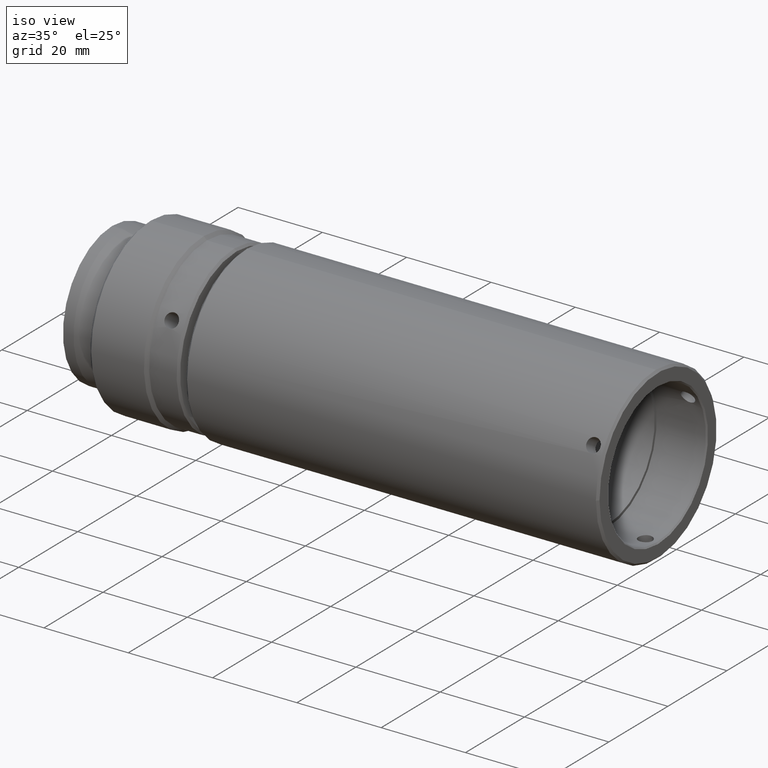
[diagram: clean part render]
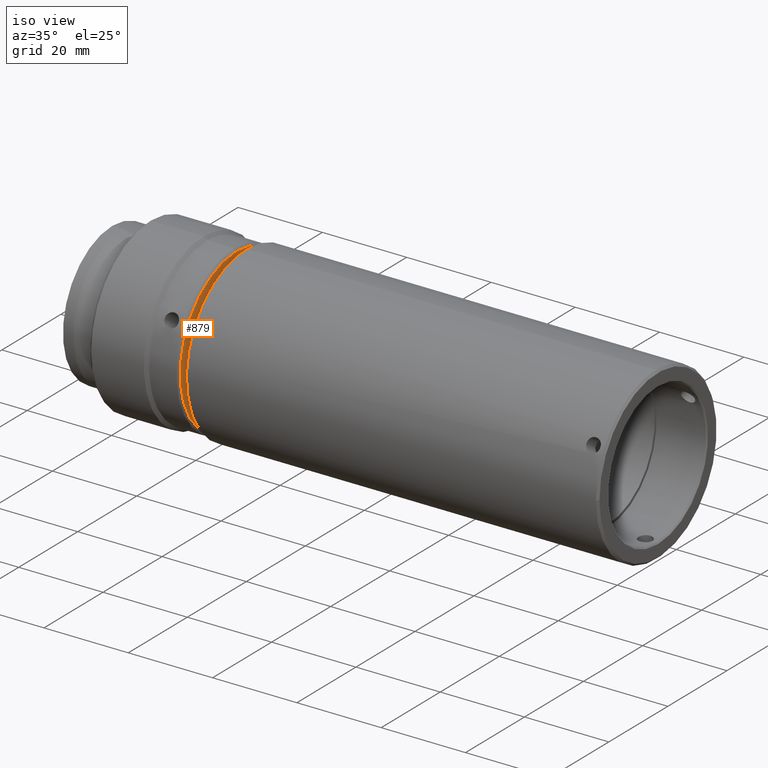
[diagram: same view with one face highlighted and labeled with its STEP entity id]
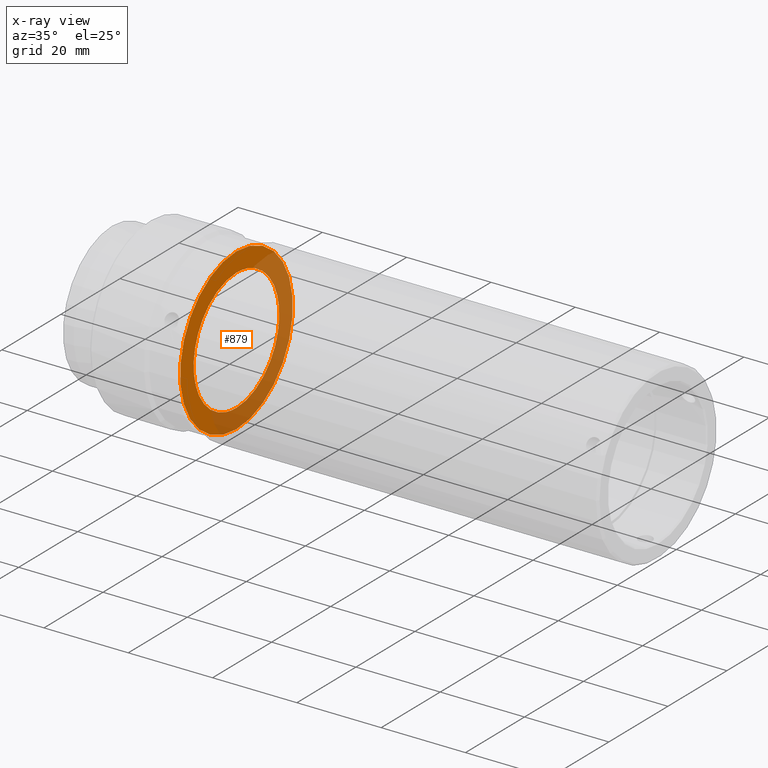
[diagram: x-ray of the same camera — body ghosted, the highlighted face saturated]
A machine part, iso view. The second image highlights one B-rep face of the part: STEP entity #879.
The next image is the same camera in x-ray: the body ghosted, the highlighted face saturated — about 48% of this face is hidden behind the body in this view.
In plain terms, the highlighted planar face has unit normal (-1, 0, 0).
Its self-contained STEP definition (entity closure, byte-faithful):
#19 = CARTESIAN_POINT ( 'NONE',  ( 22.43949542268091335, 50.30531704458957165, 92.49589676093887647 ) ) ;
#31 = CARTESIAN_POINT ( 'NONE',  ( 22.43949542268091690, 54.08979149574390277, 92.98455435096877864 ) ) ;
#44 = CARTESIAN_POINT ( 'NONE',  ( 22.43949542268091335, 50.30531704458957165, 121.4958967609388765 ) ) ;
#53 = CARTESIAN_POINT ( 'NONE',  ( 22.43949542268091335, 45.73902698465734318, 120.7617198613252327 ) ) ;
#64 = CARTESIAN_POINT ( 'NONE',  ( 22.43949542268090980, 44.99639947583963817, 120.4890902215009731 ) ) ;
#75 = CARTESIAN_POINT ( 'NONE',  ( 22.43949542268091335, 63.62450147455811589, 101.2621205272012048 ) ) ;
#76 = CARTESIAN_POINT ( 'NONE',  ( 22.43949542268091335, 36.83419894449922793, 112.3605754455987551 ) ) ;
#81 = DIRECTION ( 'NONE',  ( -1.000000000000000000, 0.000000000000000000, 0.000000000000000000 ) ) ;
#83 = CARTESIAN_POINT ( 'NONE',  ( 22.43949542268092046, 62.19755397945289133, 98.69813913867156430 ) ) ;
#92 = CARTESIAN_POINT ( 'NONE',  ( 22.43949542268092046, 64.62946097612575613, 109.2521610704573050 ) ) ;
#93 = CARTESIAN_POINT ( 'NONE',  ( 22.43949542268091335, 44.85419051183175299, 93.55952596466987359 ) ) ;
#104 = CARTESIAN_POINT ( 'NONE',  ( 22.43949542268090980, 60.91205097722224338, 97.09648178313861422 ) ) ;
#106 = CARTESIAN_POINT ( 'NONE',  ( 22.43949542268090980, 37.93894613476978606, 99.42293593007610752 ) ) ;
#119 = CARTESIAN_POINT ( 'NONE',  ( 22.43949542268092046, 63.96024365502523068, 102.0954098084588253 ) ) ;
#121 = CARTESIAN_POINT ( 'NONE',  ( 22.43949542268091690, 46.86269795073086897, 92.90699339268540768 ) ) ;
#134 = CARTESIAN_POINT ( 'NONE',  ( 22.43949542268091335, 62.57417613657592881, 114.7243464100760804 ) ) ;
#135 = CARTESIAN_POINT ( 'NONE',  ( 22.43949542268091335, 36.03737772726800159, 104.4119864923242744 ) ) ;
#145 = CARTESIAN_POINT ( 'NONE',  ( 22.43949542268091335, 53.34727312733770077, 121.1740880484522762 ) ) ;
#159 = CARTESIAN_POINT ( 'NONE',  ( 22.43949542268090980, 58.95911926255553226, 118.6352321278560709 ) ) ;
#185 = CARTESIAN_POINT ( 'NONE',  ( 22.43949542268091335, 52.07206856090182612, 121.4152060416190437 ) ) ;
#211 = CARTESIAN_POINT ( 'NONE',  ( 22.43949542268091690, 50.74851101943846032, 92.49588055110112350 ) ) ;
#213 = CARTESIAN_POINT ( 'NONE',  ( 22.43949542268090624, 36.08606356327023690, 109.8364605439915351 ) ) ;
#232 = CARTESIAN_POINT ( 'NONE',  ( 22.43949542268091335, 36.86894624831813161, 112.4470232936930216 ) ) ;
#240 = CARTESIAN_POINT ( 'NONE',  ( 22.43949542268091690, 46.52084259424816537, 121.0072391712201352 ) ) ;
#247 = CARTESIAN_POINT ( 'NONE',  ( 22.43949542268091690, 64.07114014478102604, 111.5621868213838042 ) ) ;
#248 = CARTESIAN_POINT ( 'NONE',  ( 22.43949542268091690, 49.86203544134217935, 121.4958967609388765 ) ) ;
#252 = ORIENTED_EDGE ( 'NONE', *, *, #1823, .F. ) ;
#257 = CARTESIAN_POINT ( 'NONE',  ( 22.43949542268091690, 64.80525308689634301, 106.1096793029854126 ) ) ;
#258 = CARTESIAN_POINT ( 'NONE',  ( 22.43949542268091335, 42.16245512130609541, 94.99807102233206990 ) ) ;
#266 = CARTESIAN_POINT ( 'NONE',  ( 22.43949542268091690, 35.88607182205242907, 108.7629943297977775 ) ) ;
#269 = DIRECTION ( 'NONE',  ( -1.000000000000000000, 0.000000000000000000, 0.000000000000000000 ) ) ;
#277 = CARTESIAN_POINT ( 'NONE',  ( 22.43949542268091690, 64.55245090912042372, 104.2996140076172651 ) ) ;
#278 = CARTESIAN_POINT ( 'NONE',  ( 22.43949542268091690, 49.41787825206804285, 92.49592921904904586 ) ) ;
#291 = CARTESIAN_POINT ( 'NONE',  ( 22.43949542268091335, 64.18699052337615285, 102.7604381891651855 ) ) ;
#292 = CARTESIAN_POINT ( 'NONE',  ( 22.43949542268091690, 35.80528506574887615, 106.5527880319420149 ) ) ;
#304 = CARTESIAN_POINT ( 'NONE',  ( 22.43949542268091335, 53.00159979572471514, 121.2430306263352264 ) ) ;
#305 = CARTESIAN_POINT ( 'NONE',  ( 22.43949542268091690, 36.13286677251252854, 103.8953487509780871 ) ) ;
#311 = VERTEX_POINT ( 'NONE', #923 ) ;
#316 = CARTESIAN_POINT ( 'NONE',  ( 22.43949542268092046, 56.43045357797331008, 120.1427717836920834 ) ) ;
#326 = EDGE_CURVE ( 'NONE', #311, #1766, #1082, .T. ) ;
#337 = CARTESIAN_POINT ( 'NONE',  ( 22.43949542268091335, 58.29108462655109690, 119.0988356772915751 ) ) ;
#349 = CARTESIAN_POINT ( 'NONE',  ( 22.43949542268090980, 53.74793611503653779, 121.0848001384540851 ) ) ;
#395 = CARTESIAN_POINT ( 'NONE',  ( 22.43949542268092046, 55.25849026684494447, 93.36722335004367324 ) ) ;
#408 = CARTESIAN_POINT ( 'NONE',  ( 22.43949542268091690, 43.84653758189828210, 119.9942735303628325 ) ) ;
#422 = CARTESIAN_POINT ( 'NONE',  ( 22.43949542268091690, 58.03376669375425223, 94.72703766896314903 ) ) ;
#423 = CARTESIAN_POINT ( 'NONE',  ( 22.43949542268091690, 36.42364356581900608, 111.2313553327256557 ) ) ;
#431 = CARTESIAN_POINT ( 'NONE',  ( 22.43949542268091335, 62.37291363398708199, 98.95681089426915378 ) ) ;
#432 = CARTESIAN_POINT ( 'NONE',  ( 22.43949542268090980, 35.98117311305691146, 104.7396324514121204 ) ) ;
#441 = CARTESIAN_POINT ( 'NONE',  ( 22.43949542268092046, 63.79851050515067357, 112.3048143296923769 ) ) ;
#442 = CARTESIAN_POINT ( 'NONE',  ( 22.43949542268090980, 47.46475326152665275, 92.77664327962249047 ) ) ;
#453 = CARTESIAN_POINT ( 'NONE',  ( 22.43949542268090980, 63.07888283723963951, 100.1031675639344769 ) ) ;
#454 = CARTESIAN_POINT ( 'NONE',  ( 22.43949542268090624, 36.67664363366954206, 102.0427235387376186 ) ) ;
#469 = CARTESIAN_POINT ( 'NONE',  ( 22.43949542268091690, 47.26336094818420008, 92.81770547882823053 ) ) ;
#476 = EDGE_LOOP ( 'NONE', ( #252 ) ) ;
#478 = CARTESIAN_POINT ( 'NONE',  ( 22.43949542268091335, 50.30531704458957165, 121.4958967609388765 ) ) ;
#491 = CARTESIAN_POINT ( 'NONE',  ( 22.43949542268091690, 53.05934251451630956, 121.2319808098125264 ) ) ;
#540 = CARTESIAN_POINT ( 'NONE',  ( 22.43949542268090980, 52.83467408587572578, 92.71818634256129599 ) ) ;
#555 = CARTESIAN_POINT ( 'NONE',  ( 22.43949542268091690, 47.20476903502395061, 121.1683470331622345 ) ) ;
#572 = CARTESIAN_POINT ( 'NONE',  ( 22.43949542268091690, 36.98613261459562551, 112.7296729946250906 ) ) ;
#581 = CARTESIAN_POINT ( 'NONE',  ( 22.43949542268091690, 48.04892037821423401, 121.3200162086713192 ) ) ;
#589 = CARTESIAN_POINT ( 'NONE',  ( 22.43949542268092046, 63.80881028697461943, 112.2785520192672237 ) ) ;
#590 = CARTESIAN_POINT ( 'NONE',  ( 22.43949542268091335, 37.90091416137726554, 114.5206289220085978 ) ) ;
#595 = PLANE ( 'NONE',  #1271 ) ;
#597 = CARTESIAN_POINT ( 'NONE',  ( 22.43949542268090980, 57.87827787542902769, 94.62952585110694770 ) ) ;
#610 = CARTESIAN_POINT ( 'NONE',  ( 22.43949542268091690, 64.59745699922717677, 109.4433530488118578 ) ) ;
#611 = CARTESIAN_POINT ( 'NONE',  ( 22.43949542268091335, 44.94063835993370759, 93.52477866084717562 ) ) ;
#624 = CARTESIAN_POINT ( 'NONE',  ( 22.43949542268092401, 36.05818318006111411, 109.6921795142685454 ) ) ;
#635 = CARTESIAN_POINT ( 'NONE',  ( 22.43949542268091335, 63.30369381399976447, 113.4546762236366533 ) ) ;
#636 = CARTESIAN_POINT ( 'NONE',  ( 22.43949542268091690, 45.40483009207036247, 93.34097015052120128 ) ) ;
#642 = VERTEX_POINT ( 'NONE', #2020 ) ;
#649 = CARTESIAN_POINT ( 'NONE',  ( 22.43949542268091690, 58.60307466676459143, 118.8881336958726536 ) ) ;
#650 = CARTESIAN_POINT ( 'NONE',  ( 22.43949542268091690, 38.71620180352888241, 98.22406011398224734 ) ) ;
#653 = CARTESIAN_POINT ( 'NONE',  ( 22.43949542268091335, 50.30531704458957165, 106.9958967609388765 ) ) ;
#673 = CARTESIAN_POINT ( 'NONE',  ( 22.43949542268090980, 62.50848013738115583, 114.8276551510173533 ) ) ;
#698 = CARTESIAN_POINT ( 'NONE',  ( 22.43949542268091690, 56.03909327826291076, 120.3150811909401199 ) ) ;
#711 = CARTESIAN_POINT ( 'NONE',  ( 22.43949542268090980, 52.75280829658390758, 92.70376327405806194 ) ) ;
#721 = CARTESIAN_POINT ( 'NONE',  ( 22.43949542268091690, 55.45092568695622504, 93.43939570325974842 ) ) ;
#735 = CARTESIAN_POINT ( 'NONE',  ( 22.43949542268091690, 44.51265223759137513, 120.2976176038358744 ) ) ;
#743 = CARTESIAN_POINT ( 'NONE',  ( 22.43949542268091335, 42.42310657194049384, 119.1665391530870153 ) ) ;
#761 = CARTESIAN_POINT ( 'NONE',  ( 22.43949542268091335, 63.74168784085483708, 101.5447702281731068 ) ) ;
#762 = CARTESIAN_POINT ( 'NONE',  ( 22.43949542268091690, 38.41308010965858699, 115.2936543831174561 ) ) ;
#770 = CARTESIAN_POINT ( 'NONE',  ( 22.43949542268091335, 61.94465241138532008, 98.34209454281356955 ) ) ;
#781 = CARTESIAN_POINT ( 'NONE',  ( 22.43949542268091335, 59.85099416094489300, 96.03558173493020433 ) ) ;
#782 = CARTESIAN_POINT ( 'NONE',  ( 22.43949542268090980, 36.53949394439517562, 102.4296067004870423 ) ) ;
#793 = CARTESIAN_POINT ( 'NONE',  ( 22.43949542268091335, 58.13707543468185435, 94.79273366815242241 ) ) ;
#806 = CARTESIAN_POINT ( 'NONE',  ( 22.43949542268091335, 64.39422041286564991, 103.5532776671303452 ) ) ;
#807 = CARTESIAN_POINT ( 'NONE',  ( 22.43949542268092046, 40.40590206681806507, 96.38916282827753435 ) ) ;
#818 = CARTESIAN_POINT ( 'NONE',  ( 22.43949542268091335, 53.14588082033561989, 121.2151502451496867 ) ) ;
#819 = CARTESIAN_POINT ( 'NONE',  ( 22.43949542268091335, 36.02760283795497998, 104.4665601986384615 ) ) ;
#830 = CARTESIAN_POINT ( 'NONE',  ( 22.43949542268090980, 52.97102232780457598, 121.2487814330218043 ) ) ;
#844 = CARTESIAN_POINT ( 'NONE',  ( 22.43949542268090269, 58.44817896782878819, 118.9937224995757674 ) ) ;
#867 = CARTESIAN_POINT ( 'NONE',  ( 22.43949542268091335, 60.20473202226789766, 117.6026306936644374 ) ) ;
#879 = ADVANCED_FACE ( 'NONE', ( #1138, #1812 ), #595, .F. ) ;
#893 = CARTESIAN_POINT ( 'NONE',  ( 22.43949542268090624, 52.91490107018731948, 92.73262657077390259 ) ) ;
#895 = CARTESIAN_POINT ( 'NONE',  ( 22.43949542268091690, 36.06923299740981292, 109.7499222351467125 ) ) ;
#905 = CARTESIAN_POINT ( 'NONE',  ( 22.43949542268091690, 42.73235621380160865, 119.3622676707965269 ) ) ;
#923 = CARTESIAN_POINT ( 'NONE',  ( 22.43949542268091335, 50.30531704458957165, 92.49589676093887647 ) ) ;
#931 = CARTESIAN_POINT ( 'NONE',  ( 22.43949542268090980, 63.60703788747813547, 112.7885615679423523 ) ) ;
#932 = CARTESIAN_POINT ( 'NONE',  ( 22.43949542268091335, 43.09884340513227130, 119.5825699793175119 ) ) ;
#942 = CARTESIAN_POINT ( 'NONE',  ( 22.43949542268092046, 64.56858723475181705, 109.6054807865464369 ) ) ;
#950 = CARTESIAN_POINT ( 'NONE',  ( 22.43949542268091690, 63.86181810228006128, 112.1415054032769518 ) ) ;
#951 = CARTESIAN_POINT ( 'NONE',  ( 22.43949542268091335, 39.34500201851408718, 97.45021964465041719 ) ) ;
#961 = CARTESIAN_POINT ( 'NONE',  ( 22.43949542268091335, 64.58303125122432675, 109.5252333232417215 ) ) ;
#962 = CARTESIAN_POINT ( 'NONE',  ( 22.43949542268091690, 37.71864382627617118, 99.78942312135262682 ) ) ;
#971 = DIRECTION ( 'NONE',  ( 0.000000000000000000, 0.000000000000000000, 1.000000000000000000 ) ) ;
#975 = CARTESIAN_POINT ( 'NONE',  ( 22.43949542268091690, 36.74881598689650986, 101.8502881186027196 ) ) ;
#988 = CARTESIAN_POINT ( 'NONE',  ( 22.43949542268090624, 44.76911195274883681, 93.59414392926423432 ) ) ;
#997 = CARTESIAN_POINT ( 'NONE',  ( 22.43949542268091335, 55.69963449071462236, 120.4551754239913208 ) ) ;
#1009 = CARTESIAN_POINT ( 'NONE',  ( 22.43949542268091335, 50.30531704458957165, 121.4958967609388765 ) ) ;
#1022 = CARTESIAN_POINT ( 'NONE',  ( 22.43949542268091335, 55.20580397927049887, 120.6508233784135200 ) ) ;
#1035 = CARTESIAN_POINT ( 'NONE',  ( 22.43949542268091335, 55.75644357733700218, 120.4322675572136916 ) ) ;
#1071 = CARTESIAN_POINT ( 'NONE',  ( 22.43949542268091690, 47.69573301896256368, 121.2591669510927375 ) ) ;
#1079 = CARTESIAN_POINT ( 'NONE',  ( 22.43949542268091335, 55.53318240398706962, 93.47109760647816756 ) ) ;
#1082 = B_SPLINE_CURVE_WITH_KNOTS ( 'NONE', 3,
 ( #19, #211, #1598, #1426, #1251, #711, #540, #1231, #893, #1587, #31, #1782, #395, #721, #1079, #1459, #1481, #1850, #1302, #1654, #597, #422, #793, #1283, #1315, #781, #104, #2024, #770, #83, #1098, #431, #2173, #1989, #453, #1329, #75, #1290, #761, #1141, #1838, #119, #291, #806, #1803, #1107, #1669, #277, #2162, #1813, #257, #2154, #2036, #1496, #92, #610, #961, #1825, #942, #1118, #1998, #247, #2197, #950, #2011, #589, #441, #931, #635, #1708, #2233, #134, #673, #1190, #1864, #1897, #867, #1368, #159, #649, #844, #1345, #337, #1167, #1561, #316, #698, #1733, #1035, #997, #2061, #1022, #1691, #349, #145, #818, #491, #304, #830, #185, #1177, #1009 ),
 .UNSPECIFIED., .F., .F.,
 ( 4, 1, 1, 1, 1, 2, 2, 1, 1, 1, 1, 2, 2, 1, 1, 1, 2, 2, 2, 1, 1, 1, 2, 2, 1, 1, 1, 1, 2, 2, 1, 1, 1, 1, 2, 2, 2, 1, 1, 1, 1, 2, 2, 1, 1, 1, 1, 2, 2, 1, 1, 1, 2, 2, 2, 1, 1, 1, 2, 2, 1, 1, 1, 1, 2, 2, 1, 1, 1, 1, 2, 2, 4 ),
 ( 0.000000000000000000, 0.03124999999998543526, 0.04687499999997844086, 0.05468749999997470773, 0.05859374999997251504, 0.06054687499997141870, 0.06249999999997032235, 0.09374999999995214939, 0.1093749999999430594, 0.1171874999999385075, 0.1210937499999364536, 0.1230468749999354822, 0.1249999999999344968, 0.1562499999999220623, 0.1718749999999158451, 0.1796874999999127365, 0.1835937499999111822, 0.1874999999999096556, 0.2499999999998888667, 0.2812499999998782085, 0.2968749999998731570, 0.3046874999998703260, 0.3085937499998689937, 0.3124999999998676614, 0.3437499999998604450, 0.3593749999998564482, 0.3671874999998542277, 0.3710937499998529510, 0.3730468749998528954, 0.3749999999998527844, 0.4062499999998520073, 0.4218749999998516187, 0.4296874999998518407, 0.4335937499998515632, 0.4355468749998508415, 0.4374999999998501754, 0.4999999999998383515, 0.5312499999998324673, 0.5468749999998289146, 0.5546874999998276934, 0.5585937499998275824, 0.5605468749998274713, 0.5624999999998273603, 0.5937499999998264721, 0.6093749999998265832, 0.6171874999998262501, 0.6210937499998264721, 0.6230468749998269162, 0.6249999999998274713, 0.6562499999998361311, 0.6718749999998407940, 0.6796874999998434586, 0.6835937499998449018, 0.6874999999998464562, 0.7499999999998758771, 0.7812499999998907541, 0.7968749999998979705, 0.8046874999999017453, 0.8085937499999037437, 0.8124999999999056310, 0.8437499999999179545, 0.8593749999999245048, 0.8671874999999280575, 0.8710937499999297229, 0.8730468749999303890, 0.8749999999999310552, 0.9062499999999444888, 0.9218749999999511502, 0.9296874999999548139, 0.9335937499999565903, 0.9355468749999578115, 0.9374999999999589217, 1.000000000000000000 ),
 .UNSPECIFIED. ) ;
#1083 = CARTESIAN_POINT ( 'NONE',  ( 22.43949542268091335, 45.02266178631262505, 120.4993900033435068 ) ) ;
#1092 = CARTESIAN_POINT ( 'NONE',  ( 22.43949542268091690, 48.43176181304730932, 121.3773822669377580 ) ) ;
#1098 = CARTESIAN_POINT ( 'NONE',  ( 22.43949542268091335, 62.30314278318447663, 98.85303483764464261 ) ) ;
#1099 = CARTESIAN_POINT ( 'NONE',  ( 22.43949542268092401, 42.47355865451516621, 119.1990598537345107 ) ) ;
#1107 = CARTESIAN_POINT ( 'NONE',  ( 22.43949542268091690, 64.52457052591363151, 104.1553329778951706 ) ) ;
#1108 = CARTESIAN_POINT ( 'NONE',  ( 22.43949542268091690, 36.12712576247305662, 110.0378528573230028 ) ) ;
#1118 = CARTESIAN_POINT ( 'NONE',  ( 22.43949542268090624, 64.47776731666439787, 110.0964447708966389 ) ) ;
#1119 = CARTESIAN_POINT ( 'NONE',  ( 22.43949542268091335, 35.83552010136326516, 105.8906484526952880 ) ) ;
#1129 = CARTESIAN_POINT ( 'NONE',  ( 22.43949542268091335, 47.55129157037683996, 92.75981271376062409 ) ) ;
#1138 = FACE_OUTER_BOUND ( 'NONE', #476, .T. ) ;
#1141 = CARTESIAN_POINT ( 'NONE',  ( 22.43949542268091335, 63.76459570763765328, 101.6015793148057611 ) ) ;
#1142 = CARTESIAN_POINT ( 'NONE',  ( 22.43949542268092046, 44.18018051115724631, 93.84902173821396332 ) ) ;
#1146 = CIRCLE ( 'NONE', #1441, 19.07000000000000384 ) ;
#1158 = CARTESIAN_POINT ( 'NONE',  ( 22.43949542268091690, 48.53839016540918294, 92.57661993836896386 ) ) ;
#1167 = CARTESIAN_POINT ( 'NONE',  ( 22.43949542268091335, 57.83004920564404472, 119.4002996441606399 ) ) ;
#1177 = CARTESIAN_POINT ( 'NONE',  ( 22.43949542268092046, 51.19258047424328595, 121.4958967609388765 ) ) ;
#1190 = CARTESIAN_POINT ( 'NONE',  ( 22.43949542268091335, 62.47595943673312036, 114.8781072335938660 ) ) ;
#1231 = CARTESIAN_POINT ( 'NONE',  ( 22.43949542268090980, 52.88923780244196848, 92.72795938394428106 ) ) ;
#1242 = CARTESIAN_POINT ( 'NONE',  ( 22.43949542268091335, 45.35214382269050049, 120.6245701719704897 ) ) ;
#1251 = CARTESIAN_POINT ( 'NONE',  ( 22.43949542268092046, 52.56164662047215330, 92.67176490254946941 ) ) ;
#1254 = CARTESIAN_POINT ( 'NONE',  ( 22.43949542268091690, 47.72138550433635373, 121.2638321433635440 ) ) ;
#1271 = AXIS2_PLACEMENT_3D ( 'NONE', #1289, #81, #971 ) ;
#1275 = CARTESIAN_POINT ( 'NONE',  ( 22.43949542268090624, 36.90356421291025413, 112.5321018527718309 ) ) ;
#1283 = CARTESIAN_POINT ( 'NONE',  ( 22.43949542268090624, 58.18752751724765915, 94.82525436879529934 ) ) ;
#1284 = CARTESIAN_POINT ( 'NONE',  ( 22.43949542268091335, 36.65039043416429365, 111.8963837134291879 ) ) ;
#1289 = CARTESIAN_POINT ( 'NONE',  ( 22.43949542268091335, 50.30531704458957165, 92.49589676093887647 ) ) ;
#1290 = CARTESIAN_POINT ( 'NONE',  ( 22.43949542268091335, 63.70706987625649020, 101.4596916690813941 ) ) ;
#1292 = CARTESIAN_POINT ( 'NONE',  ( 22.43949542268091335, 36.80182380220211513, 101.7132415026152330 ) ) ;
#1302 = CARTESIAN_POINT ( 'NONE',  ( 22.43949542268091335, 56.76409650739529411, 93.99751999157136595 ) ) ;
#1304 = CARTESIAN_POINT ( 'NONE',  ( 22.43949542268091335, 36.29397463456464124, 103.2114223099039094 ) ) ;
#1315 = CARTESIAN_POINT ( 'NONE',  ( 22.43949542268091690, 59.07715369152292340, 95.40678151985453326 ) ) ;
#1316 = CARTESIAN_POINT ( 'NONE',  ( 22.43949542268091335, 42.00755942234284390, 95.10365982605399893 ) ) ;
#1329 = CARTESIAN_POINT ( 'NONE',  ( 22.43949542268091335, 63.45219206728590677, 100.8707602274428581 ) ) ;
#1330 = CARTESIAN_POINT ( 'NONE',  ( 22.43949542268091690, 42.78058488349713429, 94.59149387773945250 ) ) ;
#1345 = CARTESIAN_POINT ( 'NONE',  ( 22.43949542268091335, 58.34440291123107158, 119.0634933503580299 ) ) ;
#1346 = CARTESIAN_POINT ( 'NONE',  ( 22.43949542268090980, 36.04204685442606149, 104.3863127353393025 ) ) ;
#1368 = CARTESIAN_POINT ( 'NONE',  ( 22.43949542268091335, 59.64969364723435774, 118.1033182209864947 ) ) ;
#1418 = CARTESIAN_POINT ( 'NONE',  ( 22.43949542268092046, 49.19976620640962750, 121.4656377411939445 ) ) ;
#1426 = CARTESIAN_POINT ( 'NONE',  ( 22.43949542268091690, 52.17875726385872071, 92.61438997952791397 ) ) ;
#1428 = CARTESIAN_POINT ( 'NONE',  ( 22.43949542268091335, 41.53348039755086063, 118.5850120019757128 ) ) ;
#1436 = CARTESIAN_POINT ( 'NONE',  ( 22.43949542268092401, 38.20237812823814494, 114.9816643429022776 ) ) ;
#1441 = AXIS2_PLACEMENT_3D ( 'NONE', #653, #269, #1842 ) ;
#1446 = CARTESIAN_POINT ( 'NONE',  ( 22.43949542268091690, 47.85778985125973151, 121.2880235992534352 ) ) ;
#1459 = CARTESIAN_POINT ( 'NONE',  ( 22.43949542268091690, 55.58797230292455538, 93.49240351855650033 ) ) ;
#1460 = CARTESIAN_POINT ( 'NONE',  ( 22.43949542268091690, 36.05243037069033818, 109.6615912300154747 ) ) ;
#1469 = CARTESIAN_POINT ( 'NONE',  ( 22.43949542268090980, 36.81212358402341067, 101.6869791921974411 ) ) ;
#1481 = CARTESIAN_POINT ( 'NONE',  ( 22.43949542268091690, 55.61423461333635743, 93.50270330037517397 ) ) ;
#1483 = CARTESIAN_POINT ( 'NONE',  ( 22.43949542268091690, 46.06985847275073809, 93.11422328218232281 ) ) ;
#1495 = EDGE_CURVE ( 'NONE', #1766, #311, #1762, .T. ) ;
#1496 = CARTESIAN_POINT ( 'NONE',  ( 22.43949542268091690, 64.68684452282417396, 108.8692250950088294 ) ) ;
#1497 = CARTESIAN_POINT ( 'NONE',  ( 22.43949542268091690, 42.26623117792355089, 94.92830017153636391 ) ) ;
#1511 = CARTESIAN_POINT ( 'NONE',  ( 22.43949542268091690, 38.10215395180550502, 99.16413837084147076 ) ) ;
#1561 = CARTESIAN_POINT ( 'NONE',  ( 22.43949542268092046, 57.19804624144308747, 119.7694625536651643 ) ) ;
#1587 = CARTESIAN_POINT ( 'NONE',  ( 22.43949542268091335, 53.40586505461955369, 92.82344648889332461 ) ) ;
#1590 = CARTESIAN_POINT ( 'NONE',  ( 22.43949542268090980, 40.75963992842214623, 117.9562117871933680 ) ) ;
#1598 = CARTESIAN_POINT ( 'NONE',  ( 22.43949542268091335, 51.41071453307212380, 92.52612741346774783 ) ) ;
#1619 = CARTESIAN_POINT ( 'NONE',  ( 22.43949542268091335, 47.77593895194965512, 121.2736032851562271 ) ) ;
#1635 = CARTESIAN_POINT ( 'NONE',  ( 22.43949542268091335, 37.00359620174193509, 101.2032319538434137 ) ) ;
#1643 = CARTESIAN_POINT ( 'NONE',  ( 22.43949542268091690, 36.78051789012017991, 101.7680314015605205 ) ) ;
#1654 = CARTESIAN_POINT ( 'NONE',  ( 22.43949542268090980, 57.51179068413344453, 94.40922354260312943 ) ) ;
#1665 = EDGE_LOOP ( 'NONE', ( #2170, #2058 ) ) ;
#1669 = CARTESIAN_POINT ( 'NONE',  ( 22.43949542268090624, 64.54140109177265572, 104.2418712867394532 ) ) ;
#1670 = CARTESIAN_POINT ( 'NONE',  ( 22.43949542268091335, 40.96094044178411764, 95.88847530100105132 ) ) ;
#1683 = CARTESIAN_POINT ( 'NONE',  ( 22.43949542268091690, 38.13467465244229260, 99.11368628828573435 ) ) ;
#1691 = CARTESIAN_POINT ( 'NONE',  ( 22.43949542268091690, 54.54077558521292701, 120.8775702520445208 ) ) ;
#1708 = CARTESIAN_POINT ( 'NONE',  ( 22.43949542268091335, 62.89199026295710837, 114.2023704004019322 ) ) ;
#1733 = CARTESIAN_POINT ( 'NONE',  ( 22.43949542268091690, 55.84152213641387874, 120.3976495926227983 ) ) ;
#1762 = B_SPLINE_CURVE_WITH_KNOTS ( 'NONE', 3,
 ( #44, #248, #1418, #1092, #581, #1446, #1619, #1254, #1071, #555, #240, #53, #1242, #1954, #2155, #1083, #64, #735, #408, #932, #905, #1773, #1099, #743, #1428, #1590, #1786, #2147, #1982, #762, #1965, #1975, #1436, #590, #2138, #2128, #572, #1275, #232, #1796, #76, #1284, #423, #1990, #1108, #213, #895, #624, #1460, #266, #2000, #292, #1119, #2213, #432, #2052, #819, #135, #1346, #305, #1304, #782, #454, #975, #1643, #1292, #1469, #1635, #1826, #962, #106, #2186, #1511, #1683, #650, #951, #807, #1670, #1851, #1316, #258, #1497, #2026, #1330, #2012, #1142, #2175, #988, #93, #2198, #611, #636, #1483, #121, #469, #442, #1129, #1839, #2038, #1158, #278, #1865 ),
 .UNSPECIFIED., .F., .F.,
 ( 4, 1, 1, 1, 1, 2, 2, 1, 1, 1, 1, 2, 2, 1, 1, 1, 2, 2, 2, 1, 1, 1, 2, 2, 1, 1, 1, 1, 2, 2, 1, 1, 1, 1, 2, 2, 2, 1, 1, 1, 1, 2, 2, 1, 1, 1, 1, 2, 2, 1, 1, 1, 2, 2, 2, 1, 1, 1, 2, 2, 1, 1, 1, 1, 2, 2, 1, 1, 1, 1, 2, 2, 4 ),
 ( 0.000000000000000000, 0.03125000000001298267, 0.04687500000001976891, 0.05468750000002339795, 0.05859375000002529227, 0.06054687500002600004, 0.06250000000002670086, 0.09375000000003140543, 0.1093750000000336398, 0.1171875000000349026, 0.1210937500000357492, 0.1230468750000363459, 0.1250000000000369149, 0.1562500000000535127, 0.1718750000000620060, 0.1796875000000662526, 0.1835937500000683620, 0.1875000000000704714, 0.2500000000001057487, 0.2812500000001232348, 0.2968750000001321165, 0.3046875000001367240, 0.3085937500001387224, 0.3125000000001406653, 0.3437500000001557088, 0.3593750000001630918, 0.3671875000001666445, 0.3710937500001683653, 0.3730468750001687539, 0.3750000000001691425, 0.4062500000001684208, 0.4218750000001680878, 0.4296875000001683653, 0.4335937500001680878, 0.4355468750001684763, 0.4375000000001688094, 0.5000000000001755263, 0.5312500000001784128, 0.5468750000001803002, 0.5546875000001818545, 0.5585937500001825207, 0.5605468750001824096, 0.5625000000001821876, 0.5937500000001735279, 0.6093750000001696421, 0.6171875000001677547, 0.6210937500001663114, 0.6230468750001656453, 0.6250000000001650902, 0.6562500000001554312, 0.6718750000001501022, 0.6796875000001474376, 0.6835937500001464384, 0.6875000000001454392, 0.7500000000001253442, 0.7812500000001152411, 0.7968750000001103562, 0.8046875000001076916, 0.8085937500001061373, 0.8125000000001044720, 0.8437500000000933698, 0.8593750000000878186, 0.8671875000000852651, 0.8710937500000840439, 0.8730468750000831557, 0.8750000000000822675, 0.9062500000000610623, 0.9218750000000506262, 0.9296875000000456302, 0.9335937500000432987, 0.9355468750000419664, 0.9375000000000406342, 1.000000000000000000 ),
 .UNSPECIFIED. ) ;
#1766 = VERTEX_POINT ( 'NONE', #478 ) ;
#1773 = CARTESIAN_POINT ( 'NONE',  ( 22.43949542268090980, 42.57686739545679444, 119.2647558529306480 ) ) ;
#1782 = CARTESIAN_POINT ( 'NONE',  ( 22.43949542268091335, 54.87160710513187922, 93.23007366078604718 ) ) ;
#1786 = CARTESIAN_POINT ( 'NONE',  ( 22.43949542268090980, 39.69858311186746391, 116.8953117386206486 ) ) ;
#1796 = CARTESIAN_POINT ( 'NONE',  ( 22.43949542268092401, 36.84603838153960709, 112.3902142070693202 ) ) ;
#1803 = CARTESIAN_POINT ( 'NONE',  ( 22.43949542268091335, 64.48350832671371791, 103.9539406645648825 ) ) ;
#1812 = FACE_BOUND ( 'NONE', #1665, .T. ) ;
#1813 = CARTESIAN_POINT ( 'NONE',  ( 22.43949542268092401, 64.72456226711533134, 105.2287991920952948 ) ) ;
#1823 = EDGE_CURVE ( 'NONE', #642, #642, #1146, .T. ) ;
#1825 = CARTESIAN_POINT ( 'NONE',  ( 22.43949542268091690, 64.57325636191058038, 109.5798070295583386 ) ) ;
#1826 = CARTESIAN_POINT ( 'NONE',  ( 22.43949542268091335, 37.30694027525272105, 100.5371172980756143 ) ) ;
#1838 = CARTESIAN_POINT ( 'NONE',  ( 22.43949542268091335, 63.77643514468207542, 101.6312180762854354 ) ) ;
#1839 = CARTESIAN_POINT ( 'NONE',  ( 22.43949542268091335, 47.60903429125865927, 92.74876289641093763 ) ) ;
#1842 = DIRECTION ( 'NONE',  ( 0.000000000000000000, 0.000000000000000000, 1.000000000000000000 ) ) ;
#1850 = CARTESIAN_POINT ( 'NONE',  ( 22.43949542268091690, 56.09798185165345785, 93.69417591807423662 ) ) ;
#1851 = CARTESIAN_POINT ( 'NONE',  ( 22.43949542268090980, 41.65151482650248482, 95.35656139410424714 ) ) ;
#1864 = CARTESIAN_POINT ( 'NONE',  ( 22.43949542268091335, 61.89443228565862398, 115.7677334079457978 ) ) ;
#1865 = CARTESIAN_POINT ( 'NONE',  ( 22.43949542268091335, 50.30531704458957165, 92.49589676093887647 ) ) ;
#1897 = CARTESIAN_POINT ( 'NONE',  ( 22.43949542268092046, 61.26563207084205231, 116.5415738771083056 ) ) ;
#1954 = CARTESIAN_POINT ( 'NONE',  ( 22.43949542268092046, 45.15970840241423190, 120.5523978186913325 ) ) ;
#1965 = CARTESIAN_POINT ( 'NONE',  ( 22.43949542268090624, 38.30749130595513918, 115.1387586841815818 ) ) ;
#1975 = CARTESIAN_POINT ( 'NONE',  ( 22.43949542268091690, 38.23772045517277718, 115.0349826275838154 ) ) ;
#1982 = CARTESIAN_POINT ( 'NONE',  ( 22.43949542268091335, 38.66598167767554628, 115.6496989789086030 ) ) ;
#1989 = CARTESIAN_POINT ( 'NONE',  ( 22.43949542268091690, 62.70971992776819093, 99.47116459979869774 ) ) ;
#1990 = CARTESIAN_POINT ( 'NONE',  ( 22.43949542268091335, 36.21641367632567921, 110.4385158547592027 ) ) ;
#1998 = CARTESIAN_POINT ( 'NONE',  ( 22.43949542268091690, 64.31665945461158174, 110.7803712119628443 ) ) ;
#2000 = CARTESIAN_POINT ( 'NONE',  ( 22.43949542268091690, 35.80538100227096265, 107.8821142189406004 ) ) ;
#2011 = CARTESIAN_POINT ( 'NONE',  ( 22.43949542268091335, 63.83011619905646938, 112.2237621203207993 ) ) ;
#2012 = CARTESIAN_POINT ( 'NONE',  ( 22.43949542268090980, 43.41258784767172330, 94.22233096825024745 ) ) ;
#2020 = CARTESIAN_POINT ( 'NONE',  ( 22.43949542268091335, 50.30531704458957165, 126.0658967609388839 ) ) ;
#2024 = CARTESIAN_POINT ( 'NONE',  ( 22.43949542268091335, 61.41273850447476690, 97.65152015808092756 ) ) ;
#2026 = CARTESIAN_POINT ( 'NONE',  ( 22.43949542268091335, 42.31954946262980854, 94.89295784458533944 ) ) ;
#2036 = CARTESIAN_POINT ( 'NONE',  ( 22.43949542268091690, 64.77511398782604601, 108.1011450691541569 ) ) ;
#2038 = CARTESIAN_POINT ( 'NONE',  ( 22.43949542268091335, 47.63961724146315646, 92.74301107454019188 ) ) ;
#2052 = CARTESIAN_POINT ( 'NONE',  ( 22.43949542268091335, 36.01317708995324551, 104.5484404730648436 ) ) ;
#2058 = ORIENTED_EDGE ( 'NONE', *, *, #1495, .F. ) ;
#2061 = CARTESIAN_POINT ( 'NONE',  ( 22.43949542268091335, 55.66999573035836590, 120.4670148605902966 ) ) ;
#2128 = CARTESIAN_POINT ( 'NONE',  ( 22.43949542268092046, 37.15844202184783995, 113.1210332943418706 ) ) ;
#2138 = CARTESIAN_POINT ( 'NONE',  ( 22.43949542268091335, 37.53175125187817684, 113.8886259578166289 ) ) ;
#2147 = CARTESIAN_POINT ( 'NONE',  ( 22.43949542268092046, 39.19789558454560563, 116.3402733635874853 ) ) ;
#2154 = CARTESIAN_POINT ( 'NONE',  ( 22.43949542268090624, 64.80534902343615045, 107.4390054899227636 ) ) ;
#2155 = CARTESIAN_POINT ( 'NONE',  ( 22.43949542268091690, 45.07745168530450286, 120.5206959154426869 ) ) ;
#2162 = CARTESIAN_POINT ( 'NONE',  ( 22.43949542268091335, 64.55820371849060280, 104.3302022918696537 ) ) ;
#2170 = ORIENTED_EDGE ( 'NONE', *, *, #326, .F. ) ;
#2173 = CARTESIAN_POINT ( 'NONE',  ( 22.43949542268091335, 62.40825596094875038, 99.01012917898968624 ) ) ;
#2175 = CARTESIAN_POINT ( 'NONE',  ( 22.43949542268091335, 44.57154081088712871, 93.67671233095437344 ) ) ;
#2186 = CARTESIAN_POINT ( 'NONE',  ( 22.43949542268091335, 38.03645795262031015, 99.26744711176144165 ) ) ;
#2197 = CARTESIAN_POINT ( 'NONE',  ( 22.43949542268091335, 63.93399045550686566, 111.9490699831385285 ) ) ;
#2198 = CARTESIAN_POINT ( 'NONE',  ( 22.43949542268091335, 44.91099959845828948, 93.53661809788972903 ) ) ;
#2213 = CARTESIAN_POINT ( 'NONE',  ( 22.43949542268092046, 35.92378956636204634, 105.1225684268495684 ) ) ;
#2233 = CARTESIAN_POINT ( 'NONE',  ( 22.43949542268091335, 62.67168795443966900, 114.5688575917317706 ) ) ;